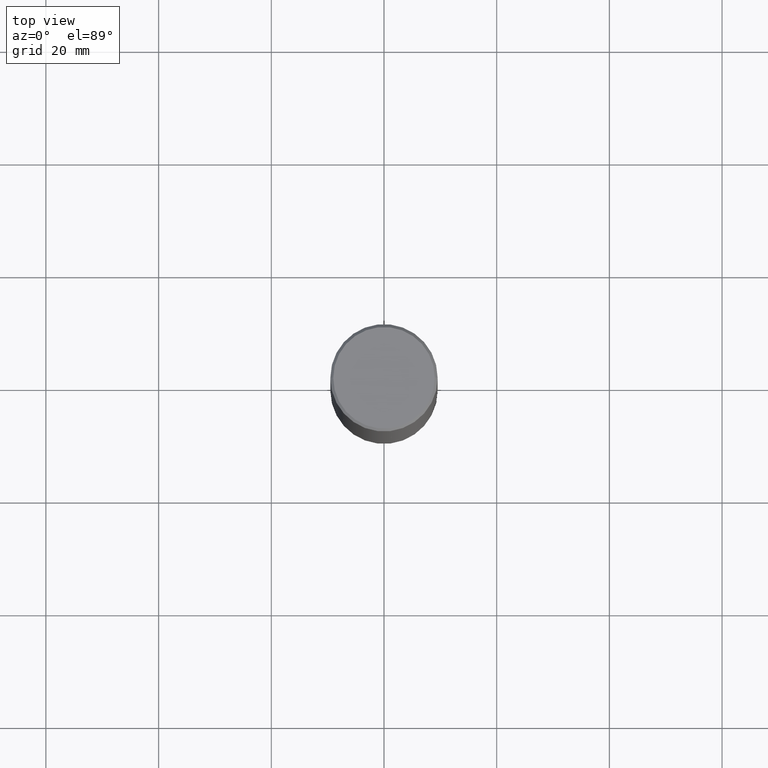
[diagram: clean part render]
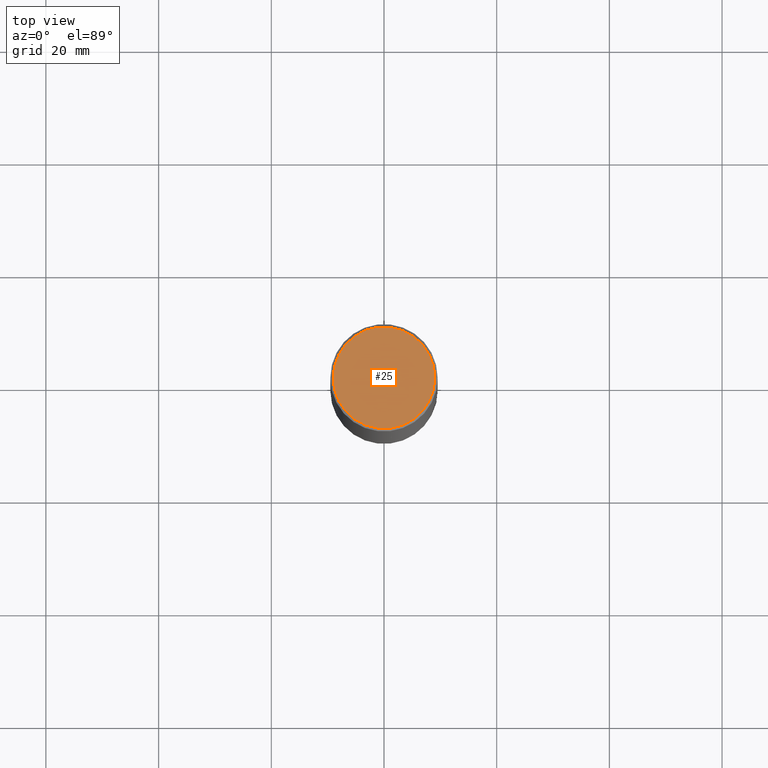
[diagram: same view with one face highlighted and labeled with its STEP entity id]
A machine part, top view. The second image highlights one B-rep face of the part: STEP entity #25.
In plain terms, the highlighted planar face has unit normal (0, -0, -1).
Its self-contained STEP definition (entity closure, byte-faithful):
#9 = AXIS2_PLACEMENT_3D ( 'NONE', #180, #10, #185 ) ;
#10 = DIRECTION ( 'NONE',  ( -2.445468806185136597E-29, 3.491481338843145583E-15, 1.000000000000000000 ) ) ;
#13 = CARTESIAN_POINT ( 'NONE',  ( 2.478951750578623026E-15, 0.3549999999999997602, -1.228804594064064785E-15 ) ) ;
#16 = AXIS2_PLACEMENT_3D ( 'NONE', #265, #132, #150 ) ;
#25 = ADVANCED_FACE ( 'NONE', ( #181 ), #287, .F. ) ;
#38 = DIRECTION ( 'NONE',  ( 2.438088387897960049E-29, -3.491481338843145188E-15, -1.000000000000000000 ) ) ;
#42 = DIRECTION ( 'NONE',  ( -1.000000000000000000, 6.982962677686265922E-15, -4.876176775795935793E-29 ) ) ;
#45 = VERTEX_POINT ( 'NONE', #82 ) ;
#72 = EDGE_CURVE ( 'NONE', #74, #45, #218, .T. ) ;
#74 = VERTEX_POINT ( 'NONE', #182 ) ;
#82 = CARTESIAN_POINT ( 'NONE',  ( 0.3549999999999997602, -2.538996582575039076E-15, 2.134256245051960239E-17 ) ) ;
#132 = DIRECTION ( 'NONE',  ( -2.445468806185136597E-29, 3.491481338843145583E-15, 1.000000000000000000 ) ) ;
#150 = DIRECTION ( 'NONE',  ( 1.000000000000000000, -6.982962677686266711E-15, 4.876231632511991546E-29 ) ) ;
#157 = EDGE_CURVE ( 'NONE', #45, #74, #176, .T. ) ;
#176 = CIRCLE ( 'NONE', #9, 0.3549999999999997602 ) ;
#180 = CARTESIAN_POINT ( 'NONE',  ( -5.219257071676098903E-46, 7.451715851902235727E-32, 2.134256245050205639E-17 ) ) ;
#181 = FACE_OUTER_BOUND ( 'NONE', #221, .T. ) ;
#182 = CARTESIAN_POINT ( 'NONE',  ( -0.3549999999999997602, 2.513866563967053491E-15, 2.134256245048459668E-17 ) ) ;
#185 = DIRECTION ( 'NONE',  ( 1.000000000000000000, -6.982962677686266711E-15, 4.876231632511991546E-29 ) ) ;
#218 = CIRCLE ( 'NONE', #16, 0.3549999999999997602 ) ;
#221 = EDGE_LOOP ( 'NONE', ( #259, #302 ) ) ;
#234 = AXIS2_PLACEMENT_3D ( 'NONE', #13, #38, #42 ) ;
#259 = ORIENTED_EDGE ( 'NONE', *, *, #72, .T. ) ;
#265 = CARTESIAN_POINT ( 'NONE',  ( -5.219257071676098903E-46, 7.451715851902235727E-32, 2.134256245050205639E-17 ) ) ;
#287 = PLANE ( 'NONE',  #234 ) ;
#302 = ORIENTED_EDGE ( 'NONE', *, *, #157, .T. ) ;